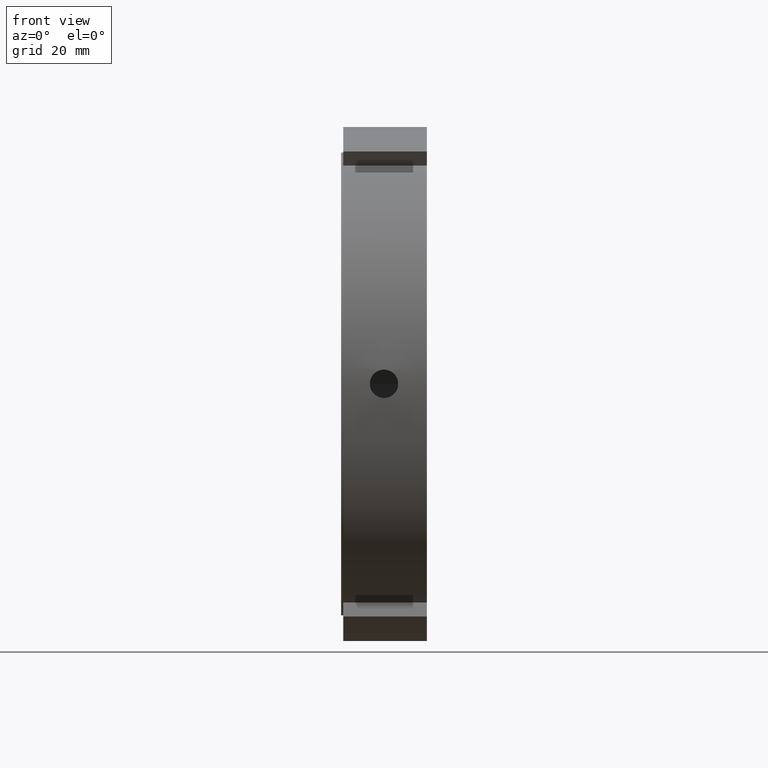
[diagram: clean part render]
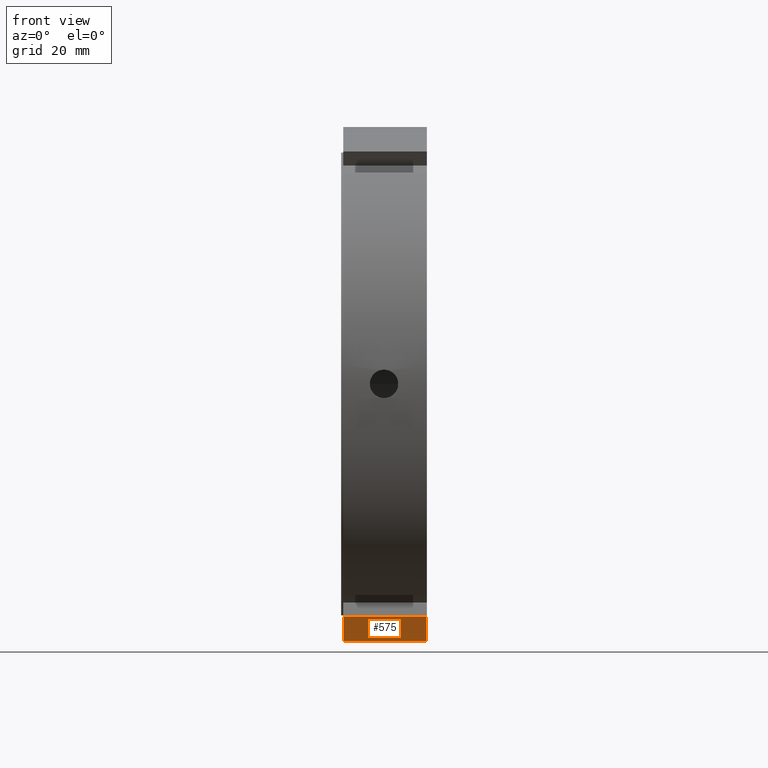
[diagram: same view with one face highlighted and labeled with its STEP entity id]
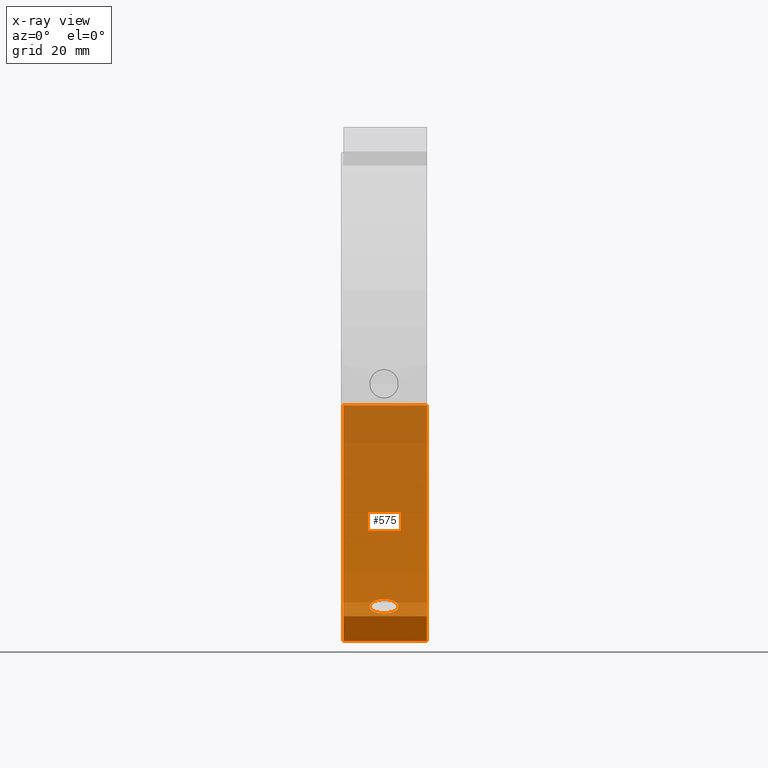
[diagram: x-ray of the same camera — body ghosted, the highlighted face saturated]
A machine part, front view. The second image highlights one B-rep face of the part: STEP entity #575.
The next image is the same camera in x-ray: the body ghosted, the highlighted face saturated — about 89% of this face is hidden behind the body in this view.
In plain terms, the highlighted cylindrical surface (partial cylindrical patch) has radius 60 mm, axis along (1, 0, 0).
Its self-contained STEP definition (entity closure, byte-faithful):
#113=CARTESIAN_POINT('',(0.499999999999984,-25.565524838831337,-54.280787943019945));
#114=VERTEX_POINT('',#113);
#123=CARTESIAN_POINT('',(19.999999999999989,-25.565524838831337,-54.280787943019945));
#124=VERTEX_POINT('',#123);
#125=CARTESIAN_POINT('',(19.999999999999989,-25.565524838831337,-54.280787943019945));
#126=DIRECTION('',(-1.0,0.0,0.0));
#127=VECTOR('',#126,19.500000000000007);
#128=LINE('',#125,#127);
#129=EDGE_CURVE('',#124,#114,#128,.T.);
#365=CARTESIAN_POINT('',(9.999999999999986,27.075705662430497,-53.543497858109994));
#366=VERTEX_POINT('',#365);
#367=CARTESIAN_POINT('',(9.999999999999986,27.075705662430494,-53.543497858109994));
#368=CARTESIAN_POINT('',(10.417397778768740,27.075705662430494,-53.543497858109994));
#369=CARTESIAN_POINT('',(10.862558739397919,27.150367635869443,-53.505947120548527));
#370=CARTESIAN_POINT('',(11.681375173826806,27.452815722116341,-53.351398753163799));
#371=CARTESIAN_POINT('',(12.055037892862659,27.680472525125897,-53.234186554401091));
#372=CARTESIAN_POINT('',(12.645100787758913,28.203046595633438,-52.959185605445725));
#373=CARTESIAN_POINT('',(12.900863532820178,28.532803743989056,-52.783016217476522));
#374=CARTESIAN_POINT('',(13.240065502190259,29.250600875891777,-52.388644178920806));
#375=CARTESIAN_POINT('',(13.323499999999985,29.638523035181841,-52.170223050009938));
#376=CARTESIAN_POINT('',(13.323499999999985,30.361476964818117,-51.752825404122724));
#377=CARTESIAN_POINT('',(13.240065502190259,30.744596290823250,-51.526085523942058));
#378=CARTESIAN_POINT('',(12.900863532820182,31.445031060706121,-51.101640992228553));
#379=CARTESIAN_POINT('',(12.645100787758913,31.762476800234396,-50.904147618657660));
#380=CARTESIAN_POINT('',(12.055037892862664,32.261921643348337,-50.589085672716777));
#381=CARTESIAN_POINT('',(11.681375173826808,32.477258786615074,-50.450535197347513));
#382=CARTESIAN_POINT('',(10.862558739397919,32.762325642007099,-50.265881655024074));
#383=CARTESIAN_POINT('',(10.417397778768741,32.832176521385669,-50.219997858109984));
#384=CARTESIAN_POINT('',(9.582602221231232,32.832176521385669,-50.219997858109984));
#385=CARTESIAN_POINT('',(9.137441260602056,32.762325642007106,-50.265881655024067));
#386=CARTESIAN_POINT('',(8.318624826173167,32.477258786615081,-50.450535197347506));
#387=CARTESIAN_POINT('',(7.944962107137314,32.261921643348337,-50.589085672716777));
#388=CARTESIAN_POINT('',(7.354899212241062,31.762476800234396,-50.904147618657660));
#389=CARTESIAN_POINT('',(7.099136467179790,31.445031060706121,-51.101640992228553));
#390=CARTESIAN_POINT('',(6.759934497809711,30.744596290823250,-51.526085523942058));
#391=CARTESIAN_POINT('',(6.676499999999985,30.361476964818117,-51.752825404122724));
#392=CARTESIAN_POINT('',(6.676499999999987,29.638523035181841,-52.170223050009938));
#393=CARTESIAN_POINT('',(6.759934497809715,29.250600875891777,-52.388644178920806));
#394=CARTESIAN_POINT('',(7.099136467179794,28.532803743989056,-52.783016217476522));
#395=CARTESIAN_POINT('',(7.354899212241057,28.203046595633438,-52.959185605445725));
#396=CARTESIAN_POINT('',(7.944962107137310,27.680472525125897,-53.234186554401091));
#397=CARTESIAN_POINT('',(8.318624826173167,27.452815722116341,-53.351398753163799));
#398=CARTESIAN_POINT('',(9.137441260602055,27.150367635869443,-53.505947120548527));
#399=CARTESIAN_POINT('',(9.582602221231234,27.075705662430494,-53.543497858109994));
#400=CARTESIAN_POINT('',(9.999999999999986,27.075705662430494,-53.543497858109994));
#401=B_SPLINE_CURVE_WITH_KNOTS('',3,(#367,#368,#369,#370,#371,#372,#373,#374,#375,#376,#377,#378,#379,#380,#381,#382,#383,#384,#385,#386,#387,#388,#389,#390,#391,#392,#393,#394,#395,#396,#397,#398,#399,#400),.UNSPECIFIED.,.T.,.U.,(4,2,2,2,2,2,2,2,2,2,2,2,2,2,2,2,4),(0.0,0.125219333630626,0.250438667261252,0.375657961027412,0.500877254793573,0.626096548559732,0.751315842325892,0.876535175956519,1.001754509587146,1.126973843217772,1.252193176848399,1.377412470614559,1.502631764380719,1.627851058146879,1.753070351913040,1.878289685543666,2.003509019174292),.UNSPECIFIED.);
#402=EDGE_CURVE('',#366,#366,#401,.T.);
#456=CARTESIAN_POINT('',(19.999999999999989,59.791303715506992,-4.999999999999996));
#457=VERTEX_POINT('',#456);
#458=CARTESIAN_POINT('',(19.999999999999986,0.0,0.0));
#459=DIRECTION('',(1.0,0.0,0.0));
#460=DIRECTION('',(0.0,1.0,0.0));
#461=AXIS2_PLACEMENT_3D('',#458,#459,#460);
#462=CIRCLE('',#461,60.0);
#463=EDGE_CURVE('',#124,#457,#462,.T.);
#548=CARTESIAN_POINT('',(10.249999999999986,0.0,0.0));
#549=DIRECTION('',(1.0,0.0,0.0));
#550=DIRECTION('',(0.0,1.0,0.0));
#551=AXIS2_PLACEMENT_3D('',#548,#549,#550);
#552=CYLINDRICAL_SURFACE('',#551,60.0);
#553=ORIENTED_EDGE('',*,*,#129,.T.);
#554=CARTESIAN_POINT('',(0.499999999999984,59.791303715506992,-4.999999999999996));
#555=VERTEX_POINT('',#554);
#556=CARTESIAN_POINT('',(0.499999999999985,0.0,0.0));
#557=DIRECTION('',(1.0,0.0,0.0));
#558=DIRECTION('',(0.0,1.0,0.0));
#559=AXIS2_PLACEMENT_3D('',#556,#557,#558);
#560=CIRCLE('',#559,60.0);
#561=EDGE_CURVE('',#114,#555,#560,.T.);
#562=ORIENTED_EDGE('',*,*,#561,.T.);
#563=CARTESIAN_POINT('',(0.499999999999984,59.791303715506992,-4.999999999999996));
#564=DIRECTION('',(1.0,0.0,0.0));
#565=VECTOR('',#564,19.500000000000007);
#566=LINE('',#563,#565);
#567=EDGE_CURVE('',#555,#457,#566,.T.);
#568=ORIENTED_EDGE('',*,*,#567,.T.);
#569=ORIENTED_EDGE('',*,*,#463,.F.);
#570=EDGE_LOOP('',(#553,#562,#568,#569));
#571=FACE_OUTER_BOUND('',#570,.T.);
#572=ORIENTED_EDGE('',*,*,#402,.T.);
#573=EDGE_LOOP('',(#572));
#574=FACE_BOUND('',#573,.T.);
#575=ADVANCED_FACE('',(#571,#574),#552,.T.);